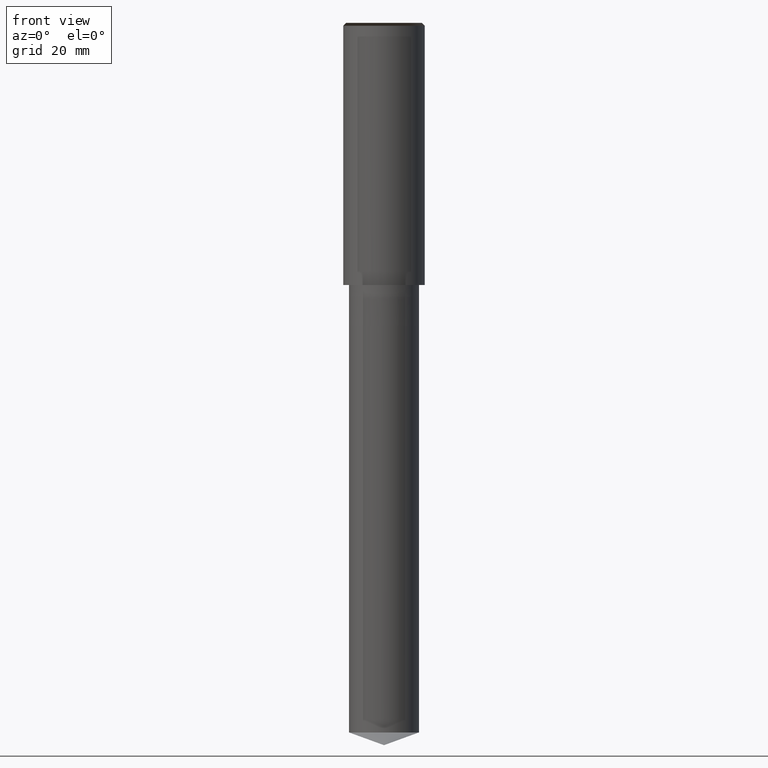
[diagram: clean part render]
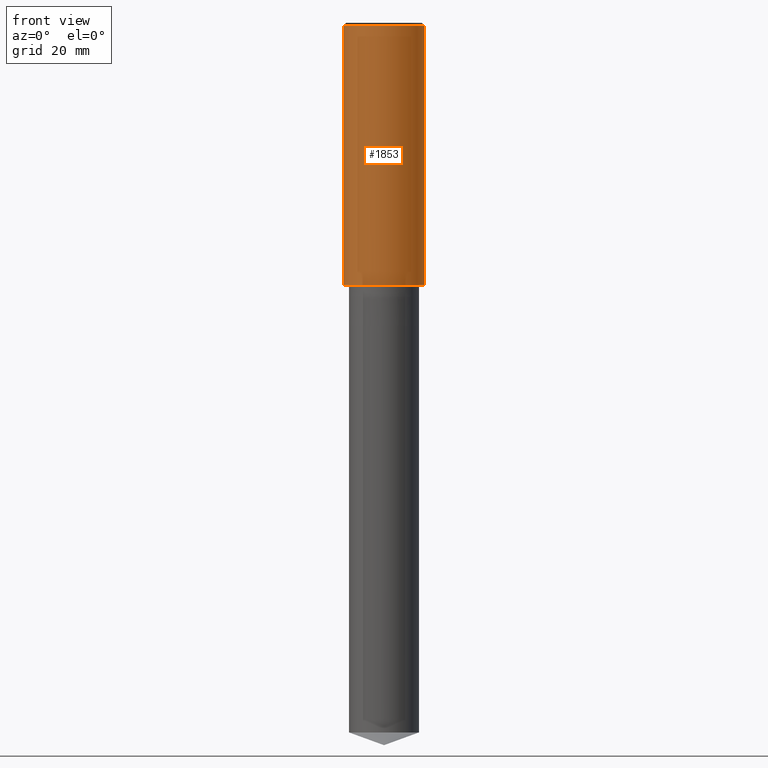
[diagram: same view with one face highlighted and labeled with its STEP entity id]
A machine part, front view. The second image highlights one B-rep face of the part: STEP entity #1853.
In plain terms, the highlighted face is a freeform B-spline surface patch.
Its self-contained STEP definition (entity closure, byte-faithful):
#1482=CARTESIAN_POINT('',(7.0,0.0,0.0));
#1486=CARTESIAN_POINT('',(-7.0,0.0,0.0));
#1487=CARTESIAN_POINT('',(7.0,0.0,44.5));
#1491=CARTESIAN_POINT('',(-7.0,0.0,44.5));
#1504=CARTESIAN_POINT('',(-7.0,-7.0,0.0));
#1505=CARTESIAN_POINT('',(0.0,-7.0,0.0));
#1506=CARTESIAN_POINT('',(7.0,-7.0,0.0));
#1507=CARTESIAN_POINT('',(-7.0,-7.0,44.5));
#1508=CARTESIAN_POINT('',(0.0,-7.0,44.5));
#1509=CARTESIAN_POINT('',(7.0,-7.0,44.5));
#1834=(
BOUNDED_SURFACE()
B_SPLINE_SURFACE(1,2,(
(#1486,#1504,#1505,#1506,#1482),
(#1491,#1507,#1508,#1509,#1487)
), .UNSPECIFIED.,.F.,.F.,.F.)
B_SPLINE_SURFACE_WITH_KNOTS((2,2),(3,2,3),(
0.0,1.0),(
0.0,0.5,1.0), .UNSPECIFIED.)
GEOMETRIC_REPRESENTATION_ITEM()
RATIONAL_B_SPLINE_SURFACE(((1.0,0.707106781187,1.0,0.707106781187,1.0),
(1.0,0.707106781187,1.0,0.707106781187,1.0)
))
REPRESENTATION_ITEM('')
SURFACE()
);
#1835=(
BOUNDED_CURVE()
B_SPLINE_CURVE(2,(#1482,#1506,#1505,#1504,#1486),.UNSPECIFIED.,.F.,.F.)
B_SPLINE_CURVE_WITH_KNOTS((3,2,3),
(0.0,0.5,1.0),.UNSPECIFIED.)
CURVE()
GEOMETRIC_REPRESENTATION_ITEM()
RATIONAL_B_SPLINE_CURVE((1.0,0.707106781187,1.0,0.707106781187,1.0))
REPRESENTATION_ITEM('')
);
#1836=(
BOUNDED_CURVE()
B_SPLINE_CURVE(1,(#1486,#1491),.UNSPECIFIED.,.F.,.F.)
B_SPLINE_CURVE_WITH_KNOTS((2,2),
(0.0,1.0),.UNSPECIFIED.)
CURVE()
GEOMETRIC_REPRESENTATION_ITEM()
RATIONAL_B_SPLINE_CURVE((1.0,1.0))
REPRESENTATION_ITEM('')
);
#1837=(
BOUNDED_CURVE()
B_SPLINE_CURVE(2,(#1491,#1507,#1508,#1509,#1487),.UNSPECIFIED.,.F.,.F.)
B_SPLINE_CURVE_WITH_KNOTS((3,2,3),
(0.0,0.5,1.0),.UNSPECIFIED.)
CURVE()
GEOMETRIC_REPRESENTATION_ITEM()
RATIONAL_B_SPLINE_CURVE((1.0,0.707106781187,1.0,0.707106781187,1.0))
REPRESENTATION_ITEM('')
);
#1838=(
BOUNDED_CURVE()
B_SPLINE_CURVE(1,(#1487,#1482),.UNSPECIFIED.,.F.,.F.)
B_SPLINE_CURVE_WITH_KNOTS((2,2),
(0.0,1.0),.UNSPECIFIED.)
CURVE()
GEOMETRIC_REPRESENTATION_ITEM()
RATIONAL_B_SPLINE_CURVE((1.0,1.0))
REPRESENTATION_ITEM('')
);
#1839=VERTEX_POINT('',#1482);
#1840=VERTEX_POINT('',#1486);
#1841=VERTEX_POINT('',#1487);
#1842=VERTEX_POINT('',#1491);
#1843=EDGE_CURVE('',#1839,#1840,#1835,.T.);
#1844=EDGE_CURVE('',#1840,#1842,#1836,.T.);
#1845=EDGE_CURVE('',#1842,#1841,#1837,.T.);
#1846=EDGE_CURVE('',#1841,#1839,#1838,.T.);
#1847=ORIENTED_EDGE('',*,*,#1843,.T.);
#1848=ORIENTED_EDGE('',*,*,#1844,.T.);
#1849=ORIENTED_EDGE('',*,*,#1845,.T.);
#1850=ORIENTED_EDGE('',*,*,#1846,.T.);
#1851=EDGE_LOOP('',(#1847,#1848,#1849,#1850));
#1852=FACE_OUTER_BOUND('',#1851,.T.);
#1853=ADVANCED_FACE('',(#1852),#1834,.T.);